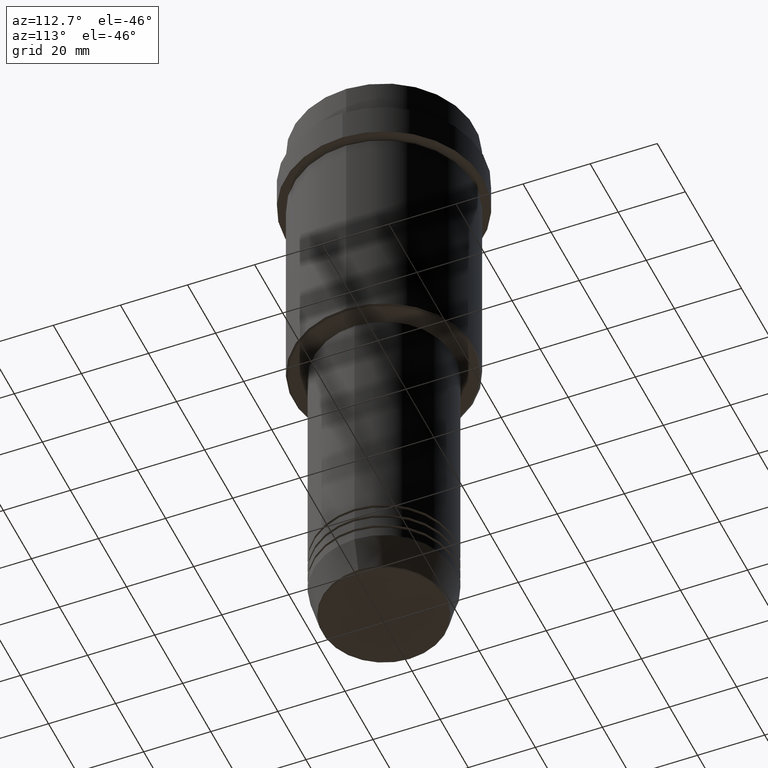
[diagram: clean part render]
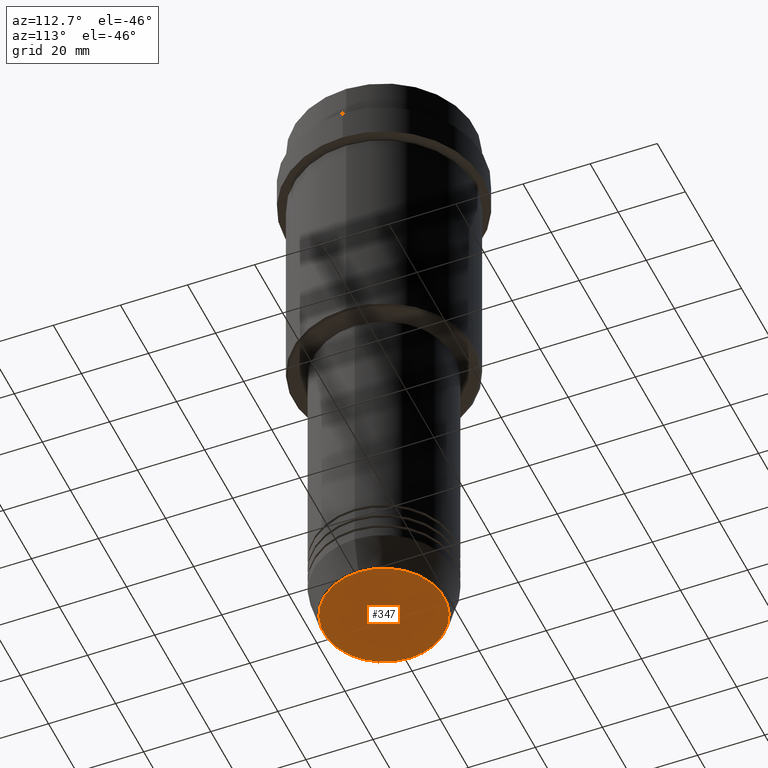
[diagram: same view with one face highlighted and labeled with its STEP entity id]
A machine part, auxiliary view. The second image highlights one B-rep face of the part: STEP entity #347.
In plain terms, the highlighted planar face has unit normal (0, -0, 1).
Its self-contained STEP definition (entity closure, byte-faithful):
#30 = AXIS2_PLACEMENT_3D ( 'NONE', #862, #1277, #870 ) ;
#48 = CARTESIAN_POINT ( 'NONE',  ( -17.93684458169929030, 2.226202879662624346E-15, -183.0000000000000000 ) ) ;
#76 = CIRCLE ( 'NONE', #30, 17.93684458169929030 ) ;
#174 = CARTESIAN_POINT ( 'NONE',  ( 0.000000000000000000, 0.000000000000000000, -183.0000000000000000 ) ) ;
#200 = EDGE_LOOP ( 'NONE', ( #824, #747 ) ) ;
#260 = AXIS2_PLACEMENT_3D ( 'NONE', #1159, #545, #846 ) ;
#347 = ADVANCED_FACE ( 'NONE', ( #723 ), #1150, .F. ) ;
#545 = DIRECTION ( 'NONE',  ( 0.000000000000000000, 0.000000000000000000, -1.000000000000000000 ) ) ;
#604 = DIRECTION ( 'NONE',  ( 0.000000000000000000, -0.000000000000000000, 1.000000000000000000 ) ) ;
#723 = FACE_OUTER_BOUND ( 'NONE', #200, .T. ) ;
#747 = ORIENTED_EDGE ( 'NONE', *, *, #826, .T. ) ;
#824 = ORIENTED_EDGE ( 'NONE', *, *, #855, .T. ) ;
#826 = EDGE_CURVE ( 'NONE', #1160, #1196, #76, .T. ) ;
#846 = DIRECTION ( 'NONE',  ( 1.000000000000000000, 0.000000000000000000, 0.000000000000000000 ) ) ;
#855 = EDGE_CURVE ( 'NONE', #1196, #1160, #1240, .T. ) ;
#862 = CARTESIAN_POINT ( 'NONE',  ( 0.000000000000000000, 0.000000000000000000, -183.0000000000000000 ) ) ;
#870 = DIRECTION ( 'NONE',  ( 1.000000000000000000, 0.000000000000000000, 0.000000000000000000 ) ) ;
#1043 = DIRECTION ( 'NONE',  ( 1.000000000000000000, 0.000000000000000000, 0.000000000000000000 ) ) ;
#1146 = CARTESIAN_POINT ( 'NONE',  ( 17.93684458169929030, 0.000000000000000000, -183.0000000000000000 ) ) ;
#1150 = PLANE ( 'NONE',  #1261 ) ;
#1159 = CARTESIAN_POINT ( 'NONE',  ( 0.000000000000000000, 0.000000000000000000, -183.0000000000000000 ) ) ;
#1160 = VERTEX_POINT ( 'NONE', #48 ) ;
#1196 = VERTEX_POINT ( 'NONE', #1146 ) ;
#1240 = CIRCLE ( 'NONE', #260, 17.93684458169929030 ) ;
#1261 = AXIS2_PLACEMENT_3D ( 'NONE', #174, #604, #1043 ) ;
#1277 = DIRECTION ( 'NONE',  ( 0.000000000000000000, 0.000000000000000000, -1.000000000000000000 ) ) ;